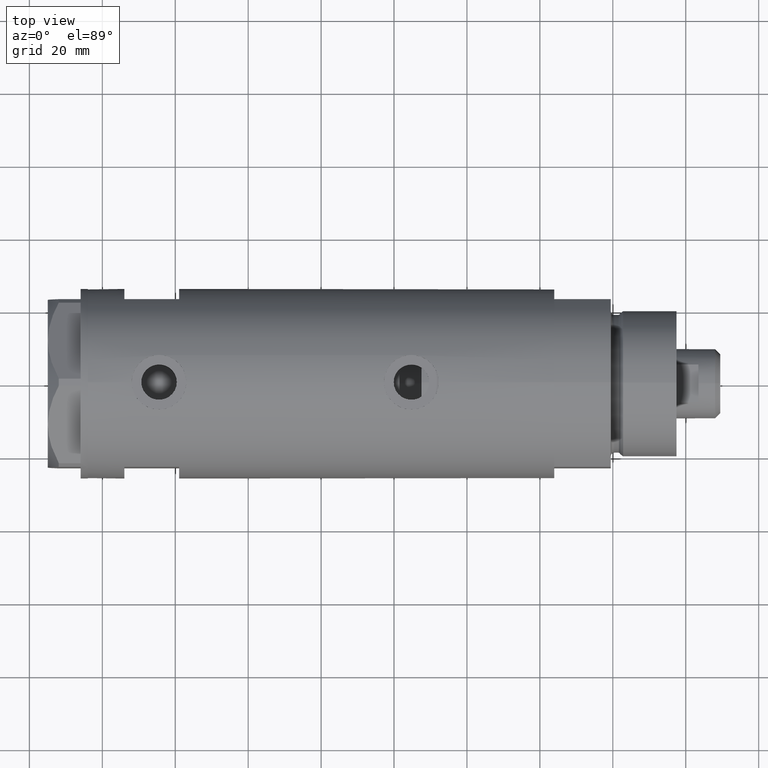
[diagram: clean part render]
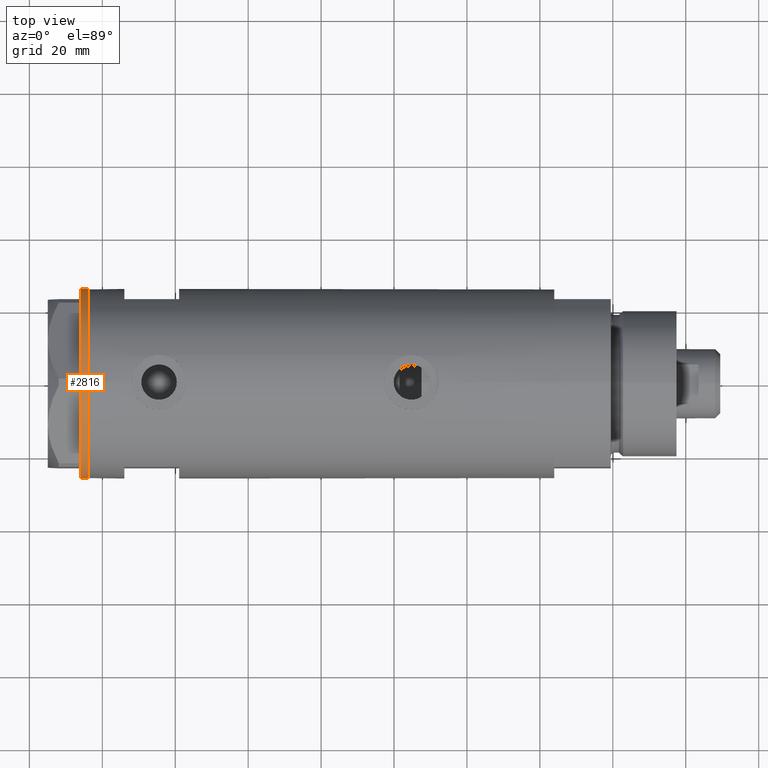
[diagram: same view with one face highlighted and labeled with its STEP entity id]
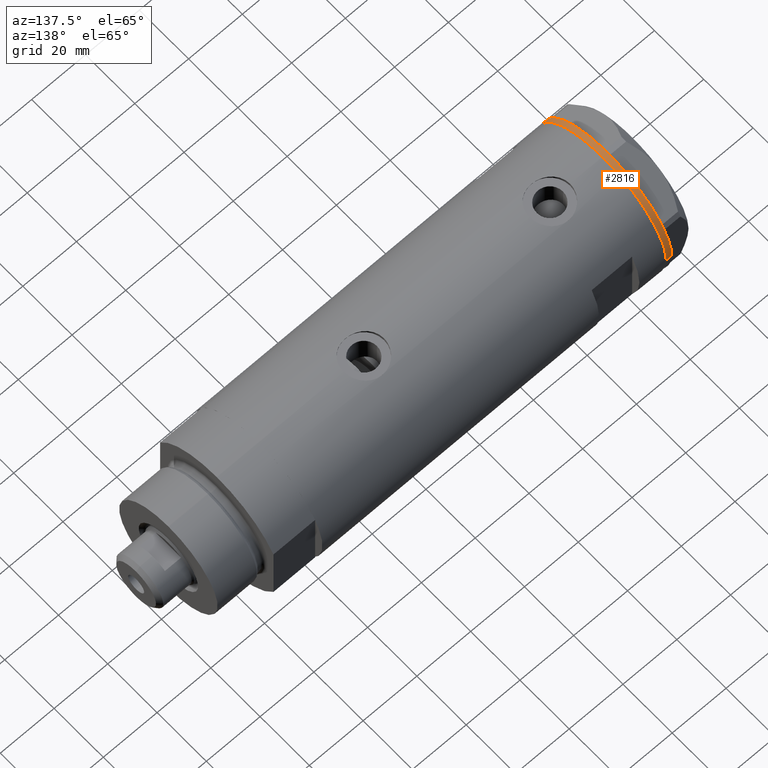
[diagram: same view with one face highlighted and labeled with its STEP entity id]
A machine part, top view. The second image highlights one B-rep face of the part: STEP entity #2816.
A second angle (auxiliary view) of the same face is appended — the face is thin or edge-on in the first view.
In plain terms, the highlighted cylindrical surface (partial cylindrical patch) has radius 26 mm, axis along (-1, -0, 0).
Its self-contained STEP definition (entity closure, byte-faithful):
#4 = CARTESIAN_POINT ( 'NONE',  ( -0.3132930502238524539, -25.99811238272274139, 0.000000000000000000 ) ) ;
#130 = EDGE_CURVE ( 'NONE', #761, #3657, #3517, .T. ) ;
#166 = ORIENTED_EDGE ( 'NONE', *, *, #735, .T. ) ;
#172 = AXIS2_PLACEMENT_3D ( 'NONE', #1433, #1878, #3016 ) ;
#182 = DIRECTION ( 'NONE',  ( 0.000000000000000000, 0.000000000000000000, -1.000000000000000000 ) ) ;
#209 = CARTESIAN_POINT ( 'NONE',  ( 0.3132930502243174709, -25.99811238272273428, 0.000000000000000000 ) ) ;
#210 = DIRECTION ( 'NONE',  ( -1.000000000000000000, 0.000000000000000000, 0.000000000000000000 ) ) ;
#240 = ORIENTED_EDGE ( 'NONE', *, *, #2190, .T. ) ;
#288 = DIRECTION ( 'NONE',  ( 1.000000000000000000, 0.000000000000000000, 0.000000000000000000 ) ) ;
#337 = CARTESIAN_POINT ( 'NONE',  ( 0.000000000000000000, 0.000000000000000000, -2.000000000000000000 ) ) ;
#356 = AXIS2_PLACEMENT_3D ( 'NONE', #4503, #3689, #1740 ) ;
#375 = CARTESIAN_POINT ( 'NONE',  ( 0.000000000000000000, 0.000000000000000000, 0.000000000000000000 ) ) ;
#377 = EDGE_CURVE ( 'NONE', #785, #2081, #3008, .T. ) ;
#385 = CARTESIAN_POINT ( 'NONE',  ( 22.67167229899274616, -12.72773645103814211, 0.000000000000000000 ) ) ;
#399 = EDGE_LOOP ( 'NONE', ( #1837, #2707, #4413, #3997, #4039, #240, #1605, #2439, #481, #3195, #4091, #1841, #166, #2502, #4892, #4009 ) ) ;
#402 = DIRECTION ( 'NONE',  ( -1.000000000000000000, 0.000000000000000000, 0.000000000000000000 ) ) ;
#426 = VERTEX_POINT ( 'NONE', #2516 ) ;
#477 = EDGE_CURVE ( 'NONE', #426, #3077, #4260, .T. ) ;
#481 = ORIENTED_EDGE ( 'NONE', *, *, #2714, .T. ) ;
#533 = AXIS2_PLACEMENT_3D ( 'NONE', #4722, #2701, #3790 ) ;
#543 = AXIS2_PLACEMENT_3D ( 'NONE', #1401, #893, #2483 ) ;
#613 = CIRCLE ( 'NONE', #533, 26.00000000000000355 ) ;
#635 = CARTESIAN_POINT ( 'NONE',  ( 0.1044411259767168837, -26.00062917530480888, 0.000000000000000000 ) ) ;
#696 = AXIS2_PLACEMENT_3D ( 'NONE', #3387, #4167, #3409 ) ;
#735 = EDGE_CURVE ( 'NONE', #1619, #3614, #3690, .T. ) ;
#759 = CARTESIAN_POINT ( 'NONE',  ( 23.00000000000007461, -12.12435565298200224, 0.000000000000000000 ) ) ;
#761 = VERTEX_POINT ( 'NONE', #2788 ) ;
#785 = VERTEX_POINT ( 'NONE', #4 ) ;
#788 = CARTESIAN_POINT ( 'NONE',  ( 22.35837924876884131, -13.27037593168418717, 0.000000000000000000 ) ) ;
#893 = DIRECTION ( 'NONE',  ( 0.000000000000000000, 0.000000000000000000, -1.000000000000000000 ) ) ;
#898 = B_SPLINE_CURVE_WITH_KNOTS ( 'NONE', 3,
 ( #4218, #635, #4640, #2287 ),
 .UNSPECIFIED., .F., .F.,
 ( 4, 4 ),
 ( 0.000000000000000000, 1.000000000000000000 ),
 .UNSPECIFIED. ) ;
#1100 = CARTESIAN_POINT ( 'NONE',  ( -22.99999999999990763, -12.12435565298232021, 0.000000000000000000 ) ) ;
#1191 = CIRCLE ( 'NONE', #5122, 26.00000000000000355 ) ;
#1241 = VERTEX_POINT ( 'NONE', #1777 ) ;
#1287 = CARTESIAN_POINT ( 'NONE',  ( -22.56942594318098116, -12.90986591935703665, 0.000000000000000000 ) ) ;
#1317 = CARTESIAN_POINT ( 'NONE',  ( -22.35837924876856064, -13.27037593168466501, 0.000000000000000000 ) ) ;
#1362 = EDGE_CURVE ( 'NONE', #3153, #785, #898, .T. ) ;
#1401 = CARTESIAN_POINT ( 'NONE',  ( 0.000000000000000000, 0.000000000000000000, 0.000000000000000000 ) ) ;
#1406 = CARTESIAN_POINT ( 'NONE',  ( 0.000000000000000000, 0.000000000000000000, 0.000000000000000000 ) ) ;
#1433 = CARTESIAN_POINT ( 'NONE',  ( 0.000000000000000000, 0.000000000000000000, 0.000000000000000000 ) ) ;
#1442 = CARTESIAN_POINT ( 'NONE',  ( 22.67167229899274616, -12.72773645103814211, 0.000000000000000000 ) ) ;
#1561 = CARTESIAN_POINT ( 'NONE',  ( 22.56942594318113748, -12.90986591935675065, 0.000000000000000000 ) ) ;
#1575 = CARTESIAN_POINT ( 'NONE',  ( 26.00000000000000355, 0.000000000000000000, -2.000000000000000000 ) ) ;
#1605 = ORIENTED_EDGE ( 'NONE', *, *, #130, .T. ) ;
#1619 = VERTEX_POINT ( 'NONE', #3710 ) ;
#1723 = CARTESIAN_POINT ( 'NONE',  ( 0.000000000000000000, 0.000000000000000000, 0.000000000000000000 ) ) ;
#1725 = DIRECTION ( 'NONE',  ( -0.000000000000000000, -0.000000000000000000, 1.000000000000000000 ) ) ;
#1740 = DIRECTION ( 'NONE',  ( -1.000000000000000000, 0.000000000000000000, 0.000000000000000000 ) ) ;
#1777 = CARTESIAN_POINT ( 'NONE',  ( 26.00000000000000355, 0.000000000000000000, 0.000000000000000000 ) ) ;
#1795 = EDGE_CURVE ( 'NONE', #3657, #1891, #1191, .T. ) ;
#1837 = ORIENTED_EDGE ( 'NONE', *, *, #1900, .F. ) ;
#1841 = ORIENTED_EDGE ( 'NONE', *, *, #3826, .T. ) ;
#1869 = DIRECTION ( 'NONE',  ( -1.000000000000000000, 0.000000000000000000, 0.000000000000000000 ) ) ;
#1878 = DIRECTION ( 'NONE',  ( 0.000000000000000000, 0.000000000000000000, -1.000000000000000000 ) ) ;
#1891 = VERTEX_POINT ( 'NONE', #4959 ) ;
#1900 = EDGE_CURVE ( 'NONE', #3077, #4252, #4089, .T. ) ;
#1952 = DIRECTION ( 'NONE',  ( -0.000000000000000000, -0.000000000000000000, 1.000000000000000000 ) ) ;
#1956 = CIRCLE ( 'NONE', #696, 26.00000000000000355 ) ;
#1981 = DIRECTION ( 'NONE',  ( -1.000000000000000000, 0.000000000000000000, 0.000000000000000000 ) ) ;
#2081 = VERTEX_POINT ( 'NONE', #3849 ) ;
#2127 = CARTESIAN_POINT ( 'NONE',  ( -26.00000000000000355, 3.184081677783118585E-15, 0.000000000000000000 ) ) ;
#2141 = CIRCLE ( 'NONE', #543, 26.00000000000000355 ) ;
#2161 = EDGE_CURVE ( 'NONE', #2717, #3560, #3862, .T. ) ;
#2190 = EDGE_CURVE ( 'NONE', #4044, #761, #4444, .T. ) ;
#2191 = AXIS2_PLACEMENT_3D ( 'NONE', #3429, #182, #1869 ) ;
#2213 = DIRECTION ( 'NONE',  ( 0.000000000000000000, 0.000000000000000000, -1.000000000000000000 ) ) ;
#2271 = AXIS2_PLACEMENT_3D ( 'NONE', #375, #3573, #402 ) ;
#2287 = CARTESIAN_POINT ( 'NONE',  ( -0.3132930502238524539, -25.99811238272274139, 0.000000000000000000 ) ) ;
#2289 = CIRCLE ( 'NONE', #3290, 26.00000000000000355 ) ;
#2370 = AXIS2_PLACEMENT_3D ( 'NONE', #337, #1952, #288 ) ;
#2383 = CARTESIAN_POINT ( 'NONE',  ( 22.00000000000017053, -13.85640646055075464, 0.000000000000000000 ) ) ;
#2439 = ORIENTED_EDGE ( 'NONE', *, *, #1795, .T. ) ;
#2483 = DIRECTION ( 'NONE',  ( -1.000000000000000000, 0.000000000000000000, 0.000000000000000000 ) ) ;
#2502 = ORIENTED_EDGE ( 'NONE', *, *, #3838, .T. ) ;
#2516 = CARTESIAN_POINT ( 'NONE',  ( 26.00000000000000355, 0.000000000000000000, -2.000000000000000000 ) ) ;
#2686 = CARTESIAN_POINT ( 'NONE',  ( -22.35837924876856064, -13.27037593168466501, 0.000000000000000000 ) ) ;
#2701 = DIRECTION ( 'NONE',  ( 0.000000000000000000, 0.000000000000000000, -1.000000000000000000 ) ) ;
#2707 = ORIENTED_EDGE ( 'NONE', *, *, #477, .F. ) ;
#2714 = EDGE_CURVE ( 'NONE', #1891, #3153, #613, .T. ) ;
#2717 = VERTEX_POINT ( 'NONE', #4667 ) ;
#2788 = CARTESIAN_POINT ( 'NONE',  ( 22.35837924876884131, -13.27037593168418717, 0.000000000000000000 ) ) ;
#2816 = ADVANCED_FACE ( 'NONE', ( #3147 ), #3887, .T. ) ;
#2952 = AXIS2_PLACEMENT_3D ( 'NONE', #3083, #4686, #210 ) ;
#3008 = CIRCLE ( 'NONE', #5017, 26.00000000000000355 ) ;
#3016 = DIRECTION ( 'NONE',  ( -1.000000000000000000, 0.000000000000000000, 0.000000000000000000 ) ) ;
#3077 = VERTEX_POINT ( 'NONE', #3776 ) ;
#3083 = CARTESIAN_POINT ( 'NONE',  ( 0.000000000000000000, 0.000000000000000000, 0.000000000000000000 ) ) ;
#3103 = EDGE_CURVE ( 'NONE', #3560, #4252, #1956, .T. ) ;
#3147 = FACE_OUTER_BOUND ( 'NONE', #399, .T. ) ;
#3148 = CARTESIAN_POINT ( 'NONE',  ( 0.000000000000000000, 0.000000000000000000, 0.000000000000000000 ) ) ;
#3152 = EDGE_CURVE ( 'NONE', #4670, #4044, #2289, .T. ) ;
#3153 = VERTEX_POINT ( 'NONE', #209 ) ;
#3195 = ORIENTED_EDGE ( 'NONE', *, *, #1362, .T. ) ;
#3201 = DIRECTION ( 'NONE',  ( 0.000000000000000000, 0.000000000000000000, -1.000000000000000000 ) ) ;
#3290 = AXIS2_PLACEMENT_3D ( 'NONE', #1406, #2213, #3801 ) ;
#3304 = DIRECTION ( 'NONE',  ( 0.000000000000000000, 0.000000000000000000, -1.000000000000000000 ) ) ;
#3306 = CARTESIAN_POINT ( 'NONE',  ( -26.00000000000000355, 3.184081677783118585E-15, -2.000000000000000000 ) ) ;
#3381 = CIRCLE ( 'NONE', #356, 26.00000000000000355 ) ;
#3387 = CARTESIAN_POINT ( 'NONE',  ( 0.000000000000000000, 0.000000000000000000, 0.000000000000000000 ) ) ;
#3402 = B_SPLINE_CURVE_WITH_KNOTS ( 'NONE', 3,
 ( #1317, #4945, #1287, #3765 ),
 .UNSPECIFIED., .F., .F.,
 ( 4, 4 ),
 ( 0.000000000000000000, 1.000000000000000000 ),
 .UNSPECIFIED. ) ;
#3409 = DIRECTION ( 'NONE',  ( -1.000000000000000000, 0.000000000000000000, 0.000000000000000000 ) ) ;
#3429 = CARTESIAN_POINT ( 'NONE',  ( 0.000000000000000000, 0.000000000000000000, -2.000000000000000000 ) ) ;
#3517 = CIRCLE ( 'NONE', #172, 26.00000000000000355 ) ;
#3559 = CARTESIAN_POINT ( 'NONE',  ( 22.46498481720470863, -13.09076325594764079, 0.000000000000000000 ) ) ;
#3560 = VERTEX_POINT ( 'NONE', #1100 ) ;
#3573 = DIRECTION ( 'NONE',  ( 0.000000000000000000, 0.000000000000000000, -1.000000000000000000 ) ) ;
#3614 = VERTEX_POINT ( 'NONE', #2686 ) ;
#3657 = VERTEX_POINT ( 'NONE', #2383 ) ;
#3689 = DIRECTION ( 'NONE',  ( 0.000000000000000000, 0.000000000000000000, -1.000000000000000000 ) ) ;
#3690 = CIRCLE ( 'NONE', #2271, 26.00000000000000355 ) ;
#3710 = CARTESIAN_POINT ( 'NONE',  ( -21.99999999999998224, -13.85640646055105485, 0.000000000000000000 ) ) ;
#3765 = CARTESIAN_POINT ( 'NONE',  ( -22.67167229899264669, -12.72773645103832507, 0.000000000000000000 ) ) ;
#3775 = EDGE_CURVE ( 'NONE', #1241, #4670, #3381, .T. ) ;
#3776 = CARTESIAN_POINT ( 'NONE',  ( -26.00000000000000355, 3.184081677783118585E-15, -2.000000000000000000 ) ) ;
#3790 = DIRECTION ( 'NONE',  ( -1.000000000000000000, 0.000000000000000000, 0.000000000000000000 ) ) ;
#3801 = DIRECTION ( 'NONE',  ( -1.000000000000000000, 0.000000000000000000, 0.000000000000000000 ) ) ;
#3826 = EDGE_CURVE ( 'NONE', #2081, #1619, #2141, .T. ) ;
#3838 = EDGE_CURVE ( 'NONE', #3614, #2717, #3402, .T. ) ;
#3849 = CARTESIAN_POINT ( 'NONE',  ( -0.9999999999997406519, -25.98076211353317433, 0.000000000000000000 ) ) ;
#3862 = CIRCLE ( 'NONE', #2952, 26.00000000000000355 ) ;
#3887 = CYLINDRICAL_SURFACE ( 'NONE', #2370, 26.00000000000000355 ) ;
#3940 = LINE ( 'NONE', #1575, #4889 ) ;
#3997 = ORIENTED_EDGE ( 'NONE', *, *, #3775, .T. ) ;
#4009 = ORIENTED_EDGE ( 'NONE', *, *, #3103, .T. ) ;
#4039 = ORIENTED_EDGE ( 'NONE', *, *, #3152, .T. ) ;
#4044 = VERTEX_POINT ( 'NONE', #1442 ) ;
#4089 = LINE ( 'NONE', #3306, #4868 ) ;
#4091 = ORIENTED_EDGE ( 'NONE', *, *, #377, .T. ) ;
#4138 = EDGE_CURVE ( 'NONE', #426, #1241, #3940, .T. ) ;
#4167 = DIRECTION ( 'NONE',  ( 0.000000000000000000, 0.000000000000000000, -1.000000000000000000 ) ) ;
#4218 = CARTESIAN_POINT ( 'NONE',  ( 0.3132930502243174709, -25.99811238272273428, 0.000000000000000000 ) ) ;
#4252 = VERTEX_POINT ( 'NONE', #2127 ) ;
#4260 = CIRCLE ( 'NONE', #2191, 26.00000000000000355 ) ;
#4332 = DIRECTION ( 'NONE',  ( -0.000000000000000000, -0.000000000000000000, 1.000000000000000000 ) ) ;
#4413 = ORIENTED_EDGE ( 'NONE', *, *, #4138, .T. ) ;
#4444 = B_SPLINE_CURVE_WITH_KNOTS ( 'NONE', 3,
 ( #385, #1561, #3559, #788 ),
 .UNSPECIFIED., .F., .F.,
 ( 4, 4 ),
 ( 0.000000000000000000, 1.000000000000000000 ),
 .UNSPECIFIED. ) ;
#4503 = CARTESIAN_POINT ( 'NONE',  ( 0.000000000000000000, 0.000000000000000000, 0.000000000000000000 ) ) ;
#4640 = CARTESIAN_POINT ( 'NONE',  ( -0.1044411259762646482, -26.00062917530481243, 0.000000000000000000 ) ) ;
#4667 = CARTESIAN_POINT ( 'NONE',  ( -22.67167229899264669, -12.72773645103832507, 0.000000000000000000 ) ) ;
#4670 = VERTEX_POINT ( 'NONE', #759 ) ;
#4686 = DIRECTION ( 'NONE',  ( 0.000000000000000000, 0.000000000000000000, -1.000000000000000000 ) ) ;
#4722 = CARTESIAN_POINT ( 'NONE',  ( 0.000000000000000000, 0.000000000000000000, 0.000000000000000000 ) ) ;
#4868 = VECTOR ( 'NONE', #1725, 1000.000000000000000 ) ;
#4889 = VECTOR ( 'NONE', #4332, 1000.000000000000000 ) ;
#4892 = ORIENTED_EDGE ( 'NONE', *, *, #2161, .T. ) ;
#4945 = CARTESIAN_POINT ( 'NONE',  ( -22.46498481720448481, -13.09076325594801915, 0.000000000000000000 ) ) ;
#4956 = DIRECTION ( 'NONE',  ( -1.000000000000000000, 0.000000000000000000, 0.000000000000000000 ) ) ;
#4959 = CARTESIAN_POINT ( 'NONE',  ( 1.000000000000106803, -25.98076211353316367, 0.000000000000000000 ) ) ;
#5017 = AXIS2_PLACEMENT_3D ( 'NONE', #1723, #3304, #4956 ) ;
#5122 = AXIS2_PLACEMENT_3D ( 'NONE', #3148, #3201, #1981 ) ;